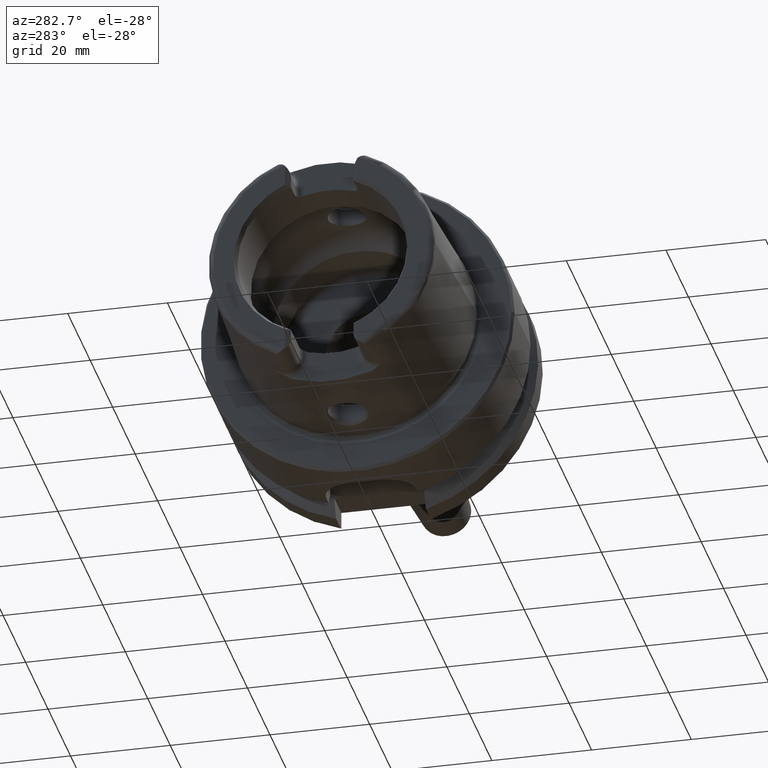
[diagram: clean part render]
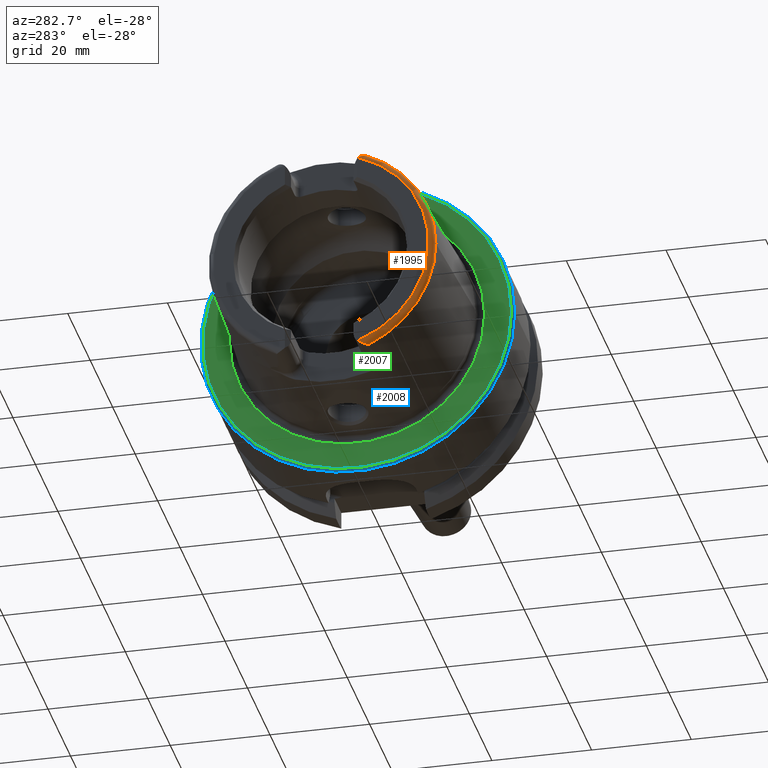
[diagram: same view with three faces highlighted in distinct colors, each labeled with its STEP entity id]
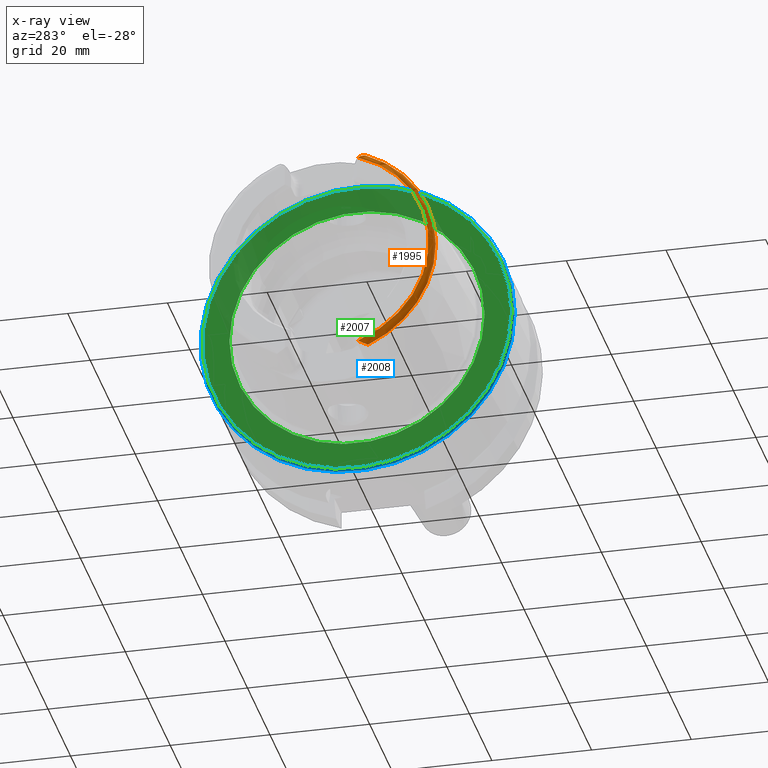
[diagram: x-ray of the same camera — body ghosted, the three highlighted faces saturated]
A machine part, auxiliary view with three faces highlighted in distinct colors.
The next image is the same camera in x-ray (body ghosted, the three faces saturated) — at least one of them is partly hidden behind the body in this view.
Their STEP definitions:

[orange] entity #1995 — the highlighted toroidal blend (fillet) surface has major radius 21.576 mm and minor (blend) radius 1.2 mm.
#32=B_SPLINE_CURVE_WITH_KNOTS('',3,(#2967,#2968,#2969,#2970,#2971,#2972,
#2973,#2974,#2975,#2976,#2977,#2978),.UNSPECIFIED.,.F.,.F.,(4,2,2,2,2,4),
(-0.196612183526961,-0.162100751777108,-0.0988537843219417,-0.0492481970353068,
-0.0201985054494333,0.),.UNSPECIFIED.);
#35=B_SPLINE_CURVE_WITH_KNOTS('',3,(#3058,#3059,#3060,#3061,#3062,#3063,
#3064,#3065,#3066,#3067,#3068,#3069),.UNSPECIFIED.,.F.,.F.,(4,2,2,2,2,4),
(-0.440016298339346,-0.413819168091726,-0.38684223146412,-0.314176502280688,
-0.242048966230796,-0.191409762337977),.UNSPECIFIED.);
#164=TOROIDAL_SURFACE('',#2236,21.5760400159857,1.2);
#281=FACE_OUTER_BOUND('',#399,.T.);
#399=EDGE_LOOP('',(#1793,#1794,#1795,#1796,#1797));
#659=CIRCLE('',#2095,22.7745368271334);
#663=CIRCLE('',#2099,22.7745368271334);
#727=CIRCLE('',#2233,21.5760400159857);
#783=VERTEX_POINT('',#2947);
#784=VERTEX_POINT('',#2966);
#803=VERTEX_POINT('',#3055);
#804=VERTEX_POINT('',#3057);
#819=VERTEX_POINT('',#3258);
#990=EDGE_CURVE('',#784,#783,#32,.T.);
#1015=EDGE_CURVE('',#804,#803,#35,.T.);
#1035=EDGE_CURVE('',#819,#783,#659,.T.);
#1047=EDGE_CURVE('',#804,#819,#663,.T.);
#1223=EDGE_CURVE('',#803,#784,#727,.T.);
#1793=ORIENTED_EDGE('',*,*,#1015,.T.);
#1794=ORIENTED_EDGE('',*,*,#1223,.T.);
#1795=ORIENTED_EDGE('',*,*,#990,.T.);
#1796=ORIENTED_EDGE('',*,*,#1035,.F.);
#1797=ORIENTED_EDGE('',*,*,#1047,.F.);
#1995=ADVANCED_FACE('',(#281),#164,.T.);
#2095=AXIS2_PLACEMENT_3D('',#3260,#2435,#2436);
#2099=AXIS2_PLACEMENT_3D('',#3364,#2443,#2444);
#2233=AXIS2_PLACEMENT_3D('',#4238,#2770,#2771);
#2236=AXIS2_PLACEMENT_3D('',#4241,#2776,#2777);
#2435=DIRECTION('center_axis',(1.,0.,0.));
#2436=DIRECTION('ref_axis',(0.,0.,-1.));
#2443=DIRECTION('center_axis',(1.,0.,0.));
#2444=DIRECTION('ref_axis',(0.,0.,-1.));
#2770=DIRECTION('center_axis',(1.,0.,0.));
#2771=DIRECTION('ref_axis',(0.,0.,-1.));
#2776=DIRECTION('center_axis',(1.,0.,0.));
#2777=DIRECTION('ref_axis',(0.,0.,-1.));
#2947=CARTESIAN_POINT('',(-30.8600449304182,-9.1175788960984,-20.8698175067219));
#2966=CARTESIAN_POINT('',(-32.,-7.39118810947246,-20.2705658801576));
#2967=CARTESIAN_POINT('Ctrl Pts',(-32.,-7.39118810947247,-20.2705658801576));
#2968=CARTESIAN_POINT('Ctrl Pts',(-32.,-7.51057646079925,-20.3626402436877));
#2969=CARTESIAN_POINT('Ctrl Pts',(-31.9798323447024,-7.63713759811651,-20.4450895592776));
#2970=CARTESIAN_POINT('Ctrl Pts',(-31.8795915966629,-8.00411514663101,-20.6460540241957));
#2971=CARTESIAN_POINT('Ctrl Pts',(-31.7662291944519,-8.24534617868917,-20.7330636375648));
#2972=CARTESIAN_POINT('Ctrl Pts',(-31.5260503396065,-8.62641311167603,-20.8272571305318));
#2973=CARTESIAN_POINT('Ctrl Pts',(-31.4080214744472,-8.77500391332017,-20.8477181028241));
#2974=CARTESIAN_POINT('Ctrl Pts',(-31.2168511506693,-8.95347341138424,-20.8640491182849));
#2975=CARTESIAN_POINT('Ctrl Pts',(-31.1371144343332,-9.01480627610083,-20.8671499279665));
#2976=CARTESIAN_POINT('Ctrl Pts',(-30.9904836833853,-9.08806135889972,-20.8694907892639));
#2977=CARTESIAN_POINT('Ctrl Pts',(-30.9268776870879,-9.10942530024495,-20.8697257132045));
#2978=CARTESIAN_POINT('Ctrl Pts',(-30.8600449304182,-9.11757889609838,-20.8698175067219));
#3055=CARTESIAN_POINT('',(-32.,-7.39118810947246,20.2705658801576));
#3057=CARTESIAN_POINT('',(-30.8600449304182,-9.1175788960984,20.8698175067219));
#3058=CARTESIAN_POINT('Ctrl Pts',(-30.8600449304182,-9.11757889609839,20.8698175067219));
#3059=CARTESIAN_POINT('Ctrl Pts',(-30.9283853966267,-9.1092413596916,20.8697236423942));
#3060=CARTESIAN_POINT('Ctrl Pts',(-30.9933437959442,-9.08709005778456,20.8694809526083));
#3061=CARTESIAN_POINT('Ctrl Pts',(-31.1177754091763,-9.02396510410894,20.8674193162914));
#3062=CARTESIAN_POINT('Ctrl Pts',(-31.1770034834694,-8.98246838908717,20.8654817144325));
#3063=CARTESIAN_POINT('Ctrl Pts',(-31.3775872414353,-8.81520504288704,20.8530880014962));
#3064=CARTESIAN_POINT('Ctrl Pts',(-31.521057678942,-8.63827412284131,20.8318261586711));
#3065=CARTESIAN_POINT('Ctrl Pts',(-31.7694065050575,-8.23592790359805,20.7289177452773));
#3066=CARTESIAN_POINT('Ctrl Pts',(-31.8689043999789,-8.02084936775806,20.6497346714256));
#3067=CARTESIAN_POINT('Ctrl Pts',(-31.9746332690681,-7.66799906728034,20.4648878758955));
#3068=CARTESIAN_POINT('Ctrl Pts',(-32.,-7.52524774054413,20.3739549886328));
#3069=CARTESIAN_POINT('Ctrl Pts',(-32.,-7.39118810947247,20.2705658801576));
#3258=CARTESIAN_POINT('',(-30.8600449304182,-22.7745368271334,-2.78907636274124E-15));
#3260=CARTESIAN_POINT('Origin',(-30.8600449304182,0.,0.));
#3364=CARTESIAN_POINT('Origin',(-30.8600449304182,0.,0.));
#4238=CARTESIAN_POINT('Origin',(-32.,0.,0.));
#4241=CARTESIAN_POINT('Origin',(-30.8,0.,0.));

[blue] entity #2008 — the highlighted conical surface has half-angle 45 deg.
#183=CONICAL_SURFACE('',#2267,31.25,0.785398163397447);
#294=FACE_OUTER_BOUND('',#416,.T.);
#416=EDGE_LOOP('',(#1848,#1849,#1850,#1851));
#522=LINE('',#4293,#627);
#627=VECTOR('',#2845,31.25);
#705=CIRCLE('',#2189,31.5);
#746=CIRCLE('',#2266,31.);
#919=VERTEX_POINT('',#4134);
#945=VERTEX_POINT('',#4290);
#1190=EDGE_CURVE('',#919,#919,#705,.T.);
#1247=EDGE_CURVE('',#945,#945,#746,.T.);
#1248=EDGE_CURVE('',#919,#945,#522,.T.);
#1848=ORIENTED_EDGE('',*,*,#1190,.F.);
#1849=ORIENTED_EDGE('',*,*,#1248,.T.);
#1850=ORIENTED_EDGE('',*,*,#1247,.T.);
#1851=ORIENTED_EDGE('',*,*,#1248,.F.);
#2008=ADVANCED_FACE('',(#294),#183,.T.);
#2189=AXIS2_PLACEMENT_3D('',#4136,#2675,#2676);
#2266=AXIS2_PLACEMENT_3D('',#4291,#2841,#2842);
#2267=AXIS2_PLACEMENT_3D('',#4292,#2843,#2844);
#2675=DIRECTION('center_axis',(1.,0.,0.));
#2676=DIRECTION('ref_axis',(0.,0.,-1.));
#2841=DIRECTION('center_axis',(1.,0.,0.));
#2842=DIRECTION('ref_axis',(0.,0.,-1.));
#2843=DIRECTION('center_axis',(1.,0.,0.));
#2844=DIRECTION('ref_axis',(0.,1.,0.));
#2845=DIRECTION('',(-0.707106781186549,0.707106781186546,8.65956056235492E-17));
#4134=CARTESIAN_POINT('',(0.5,-31.5,-3.85763741731416E-15));
#4136=CARTESIAN_POINT('Origin',(0.5,0.,0.));
#4290=CARTESIAN_POINT('',(-5.89805981832114E-16,-31.,-3.7964050773568E-15));
#4291=CARTESIAN_POINT('Origin',(0.,0.,0.));
#4292=CARTESIAN_POINT('Origin',(0.25,0.,0.));
#4293=CARTESIAN_POINT('',(0.25,-31.25,-3.82702124733548E-15));

[green] entity #2007 — the highlighted planar face has unit normal (-1, 0, 0).
#105=FACE_BOUND('',#415,.T.);
#145=PLANE('',#2265);
#293=FACE_OUTER_BOUND('',#414,.T.);
#414=EDGE_LOOP('',(#1846));
#415=EDGE_LOOP('',(#1847));
#745=CIRCLE('',#2264,25.5879092835167);
#746=CIRCLE('',#2266,31.);
#944=VERTEX_POINT('',#4286);
#945=VERTEX_POINT('',#4290);
#1246=EDGE_CURVE('',#944,#944,#745,.T.);
#1247=EDGE_CURVE('',#945,#945,#746,.T.);
#1846=ORIENTED_EDGE('',*,*,#1247,.F.);
#1847=ORIENTED_EDGE('',*,*,#1246,.T.);
#2007=ADVANCED_FACE('',(#293,#105),#145,.T.);
#2264=AXIS2_PLACEMENT_3D('',#4288,#2837,#2838);
#2265=AXIS2_PLACEMENT_3D('',#4289,#2839,#2840);
#2266=AXIS2_PLACEMENT_3D('',#4291,#2841,#2842);
#2837=DIRECTION('center_axis',(1.,0.,0.));
#2838=DIRECTION('ref_axis',(0.,0.,-1.));
#2839=DIRECTION('center_axis',(-1.,0.,0.));
#2840=DIRECTION('ref_axis',(0.,0.,1.));
#2841=DIRECTION('center_axis',(1.,0.,0.));
#2842=DIRECTION('ref_axis',(0.,0.,-1.));
#4286=CARTESIAN_POINT('',(-3.55618312575245E-16,-25.5879092835167,-3.13361512009315E-15));
#4288=CARTESIAN_POINT('Origin',(0.,0.,0.));
#4289=CARTESIAN_POINT('Origin',(0.,31.,0.));
#4290=CARTESIAN_POINT('',(-5.89805981832114E-16,-31.,-3.7964050773568E-15));
#4291=CARTESIAN_POINT('Origin',(0.,0.,0.));